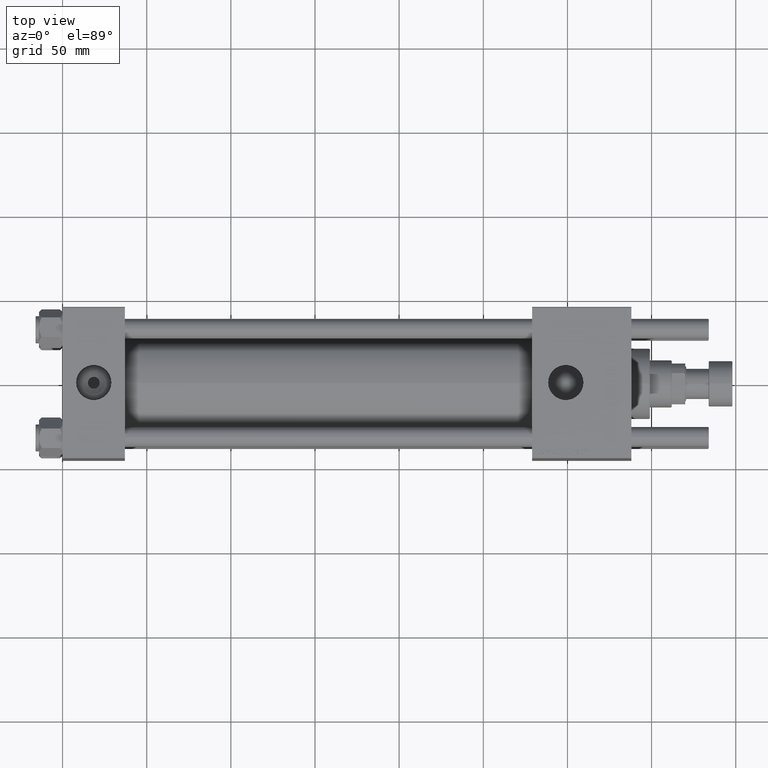
[diagram: clean part render]
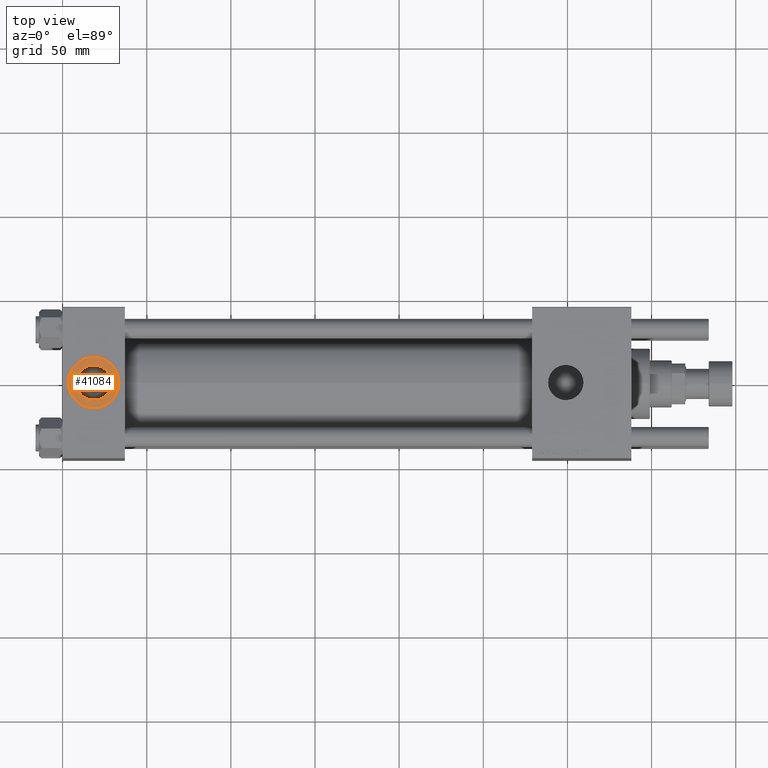
[diagram: same view with one face highlighted and labeled with its STEP entity id]
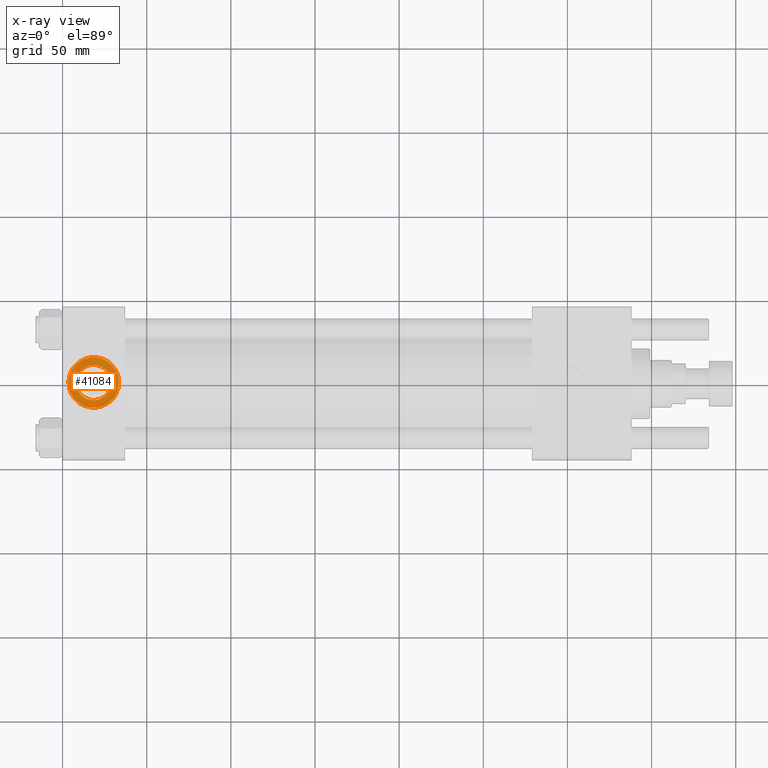
[diagram: x-ray of the same camera — body ghosted, the highlighted face saturated]
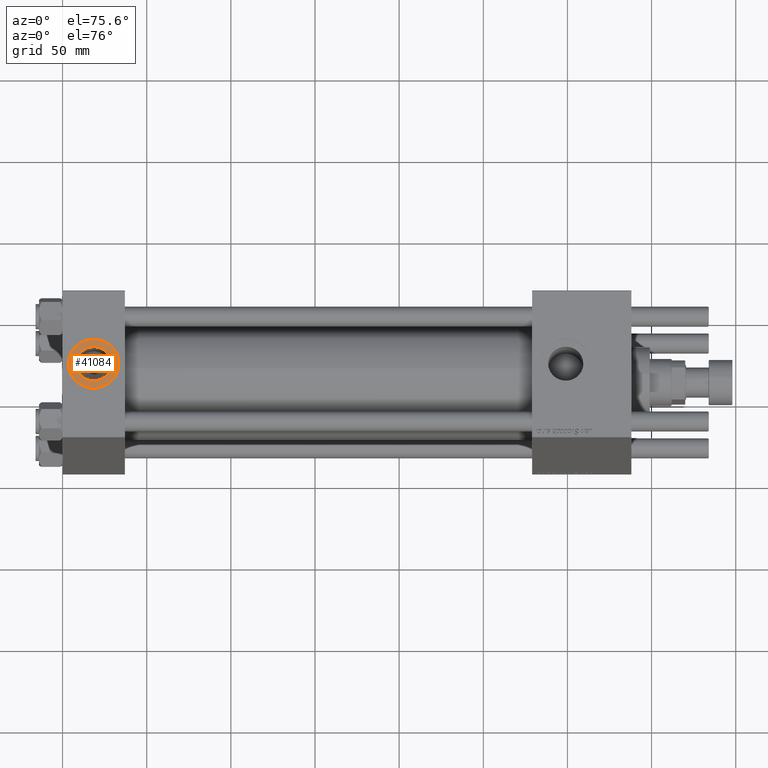
[diagram: same view with one face highlighted and labeled with its STEP entity id]
A machine part, top view. The second image highlights one B-rep face of the part: STEP entity #41084.
The next image is the same camera in x-ray: the body ghosted, the highlighted face saturated — about 0% of this face is hidden behind the body in this view.
A second angle (auxiliary view) of the same face is appended — the face is thin or edge-on in the first view.
In plain terms, the highlighted planar face has unit normal (0, 0, 1).
Its self-contained STEP definition (entity closure, byte-faithful):
#80 = DIRECTION ( 'NONE',  ( 0.000000000000000000, 0.000000000000000000, 1.000000000000000000 ) ) ;
#474 = CIRCLE ( 'NONE', #42575, 15.00000000000000355 ) ;
#1576 = DIRECTION ( 'NONE',  ( 1.000000000000000000, 0.000000000000000000, -0.000000000000000000 ) ) ;
#2562 = AXIS2_PLACEMENT_3D ( 'NONE', #24356, #42647, #1576 ) ;
#4365 = CIRCLE ( 'NONE', #44575, 10.48000000000000043 ) ;
#5782 = PLANE ( 'NONE',  #2562 ) ;
#5816 = CARTESIAN_POINT ( 'NONE',  ( 33.50000000000000000, -8.673617379884038628E-15, 44.80000000000000426 ) ) ;
#5938 = EDGE_LOOP ( 'NONE', ( #9171, #17289 ) ) ;
#6545 = CARTESIAN_POINT ( 'NONE',  ( 3.499999999999997780, -6.836647181163008250E-15, 44.80000000000000426 ) ) ;
#7285 = ORIENTED_EDGE ( 'NONE', *, *, #56625, .F. ) ;
#7658 = DIRECTION ( 'NONE',  ( 1.000000000000000000, 0.000000000000000000, 0.000000000000000000 ) ) ;
#9171 = ORIENTED_EDGE ( 'NONE', *, *, #35687, .T. ) ;
#17289 = ORIENTED_EDGE ( 'NONE', *, *, #18753, .T. ) ;
#18753 = EDGE_CURVE ( 'NONE', #56938, #49125, #26857, .T. ) ;
#20554 = CARTESIAN_POINT ( 'NONE',  ( 18.50000000000000000, -8.673617379884038628E-15, 44.80000000000000426 ) ) ;
#23754 = DIRECTION ( 'NONE',  ( 1.000000000000000000, 0.000000000000000000, 0.000000000000000000 ) ) ;
#24356 = CARTESIAN_POINT ( 'NONE',  ( 18.50000000000000000, -8.673617379884038628E-15, 44.80000000000000426 ) ) ;
#25608 = VERTEX_POINT ( 'NONE', #57445 ) ;
#26857 = CIRCLE ( 'NONE', #49817, 15.00000000000000355 ) ;
#27933 = EDGE_CURVE ( 'NONE', #25608, #31676, #37553, .T. ) ;
#28719 = DIRECTION ( 'NONE',  ( 1.000000000000000000, 0.000000000000000000, 0.000000000000000000 ) ) ;
#28856 = FACE_OUTER_BOUND ( 'NONE', #5938, .T. ) ;
#29451 = FACE_BOUND ( 'NONE', #48931, .T. ) ;
#31676 = VERTEX_POINT ( 'NONE', #57662 ) ;
#33998 = ORIENTED_EDGE ( 'NONE', *, *, #27933, .F. ) ;
#35687 = EDGE_CURVE ( 'NONE', #49125, #56938, #474, .T. ) ;
#37553 = CIRCLE ( 'NONE', #45203, 10.48000000000000043 ) ;
#41084 = ADVANCED_FACE ( 'NONE', ( #29451, #28856 ), #5782, .T. ) ;
#42575 = AXIS2_PLACEMENT_3D ( 'NONE', #46418, #56578, #28719 ) ;
#42647 = DIRECTION ( 'NONE',  ( 0.000000000000000000, 0.000000000000000000, 1.000000000000000000 ) ) ;
#43777 = CARTESIAN_POINT ( 'NONE',  ( 18.50000000000000000, -8.673617379884038628E-15, 44.80000000000000426 ) ) ;
#44575 = AXIS2_PLACEMENT_3D ( 'NONE', #43777, #56358, #47668 ) ;
#45203 = AXIS2_PLACEMENT_3D ( 'NONE', #50728, #80, #23754 ) ;
#46418 = CARTESIAN_POINT ( 'NONE',  ( 18.50000000000000000, -8.673617379884038628E-15, 44.80000000000000426 ) ) ;
#47668 = DIRECTION ( 'NONE',  ( 1.000000000000000000, 0.000000000000000000, 0.000000000000000000 ) ) ;
#48931 = EDGE_LOOP ( 'NONE', ( #7285, #33998 ) ) ;
#49125 = VERTEX_POINT ( 'NONE', #5816 ) ;
#49817 = AXIS2_PLACEMENT_3D ( 'NONE', #20554, #57117, #7658 ) ;
#50728 = CARTESIAN_POINT ( 'NONE',  ( 18.50000000000000000, -8.673617379884038628E-15, 44.80000000000000426 ) ) ;
#56358 = DIRECTION ( 'NONE',  ( 0.000000000000000000, 0.000000000000000000, 1.000000000000000000 ) ) ;
#56578 = DIRECTION ( 'NONE',  ( 0.000000000000000000, 0.000000000000000000, 1.000000000000000000 ) ) ;
#56625 = EDGE_CURVE ( 'NONE', #31676, #25608, #4365, .T. ) ;
#56938 = VERTEX_POINT ( 'NONE', #6545 ) ;
#57117 = DIRECTION ( 'NONE',  ( 0.000000000000000000, 0.000000000000000000, 1.000000000000000000 ) ) ;
#57445 = CARTESIAN_POINT ( 'NONE',  ( 8.019999999999999574, -7.390187534377611561E-15, 44.80000000000000426 ) ) ;
#57662 = CARTESIAN_POINT ( 'NONE',  ( 28.98000000000000043, -8.673617379884038628E-15, 44.80000000000000426 ) ) ;